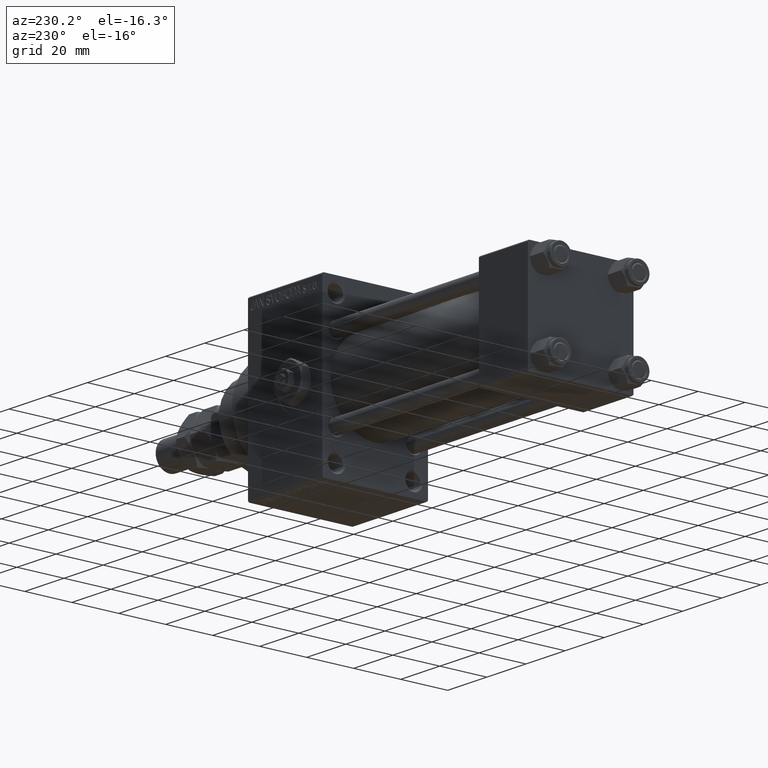
[diagram: clean part render]
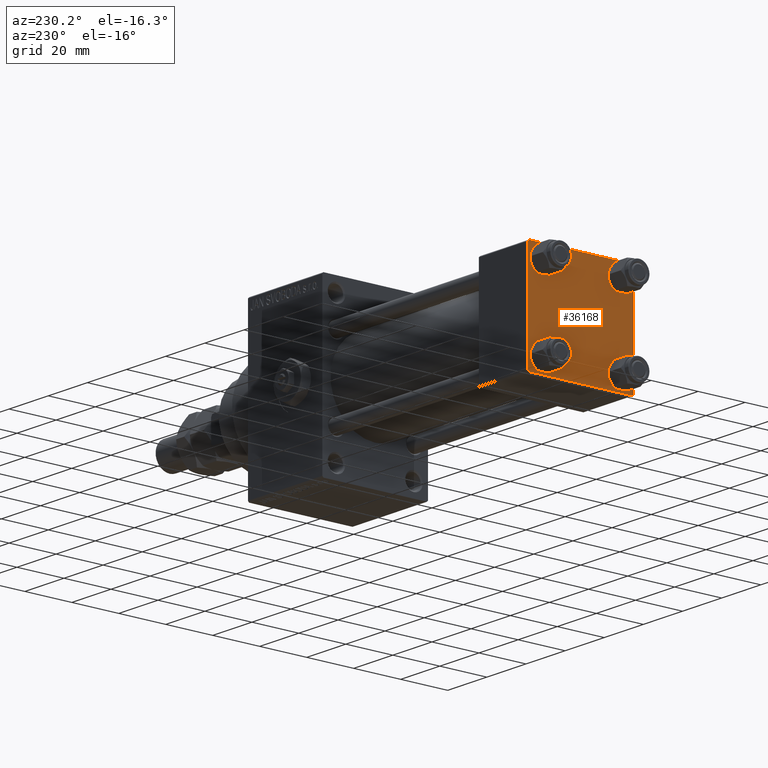
[diagram: same view with one face highlighted and labeled with its STEP entity id]
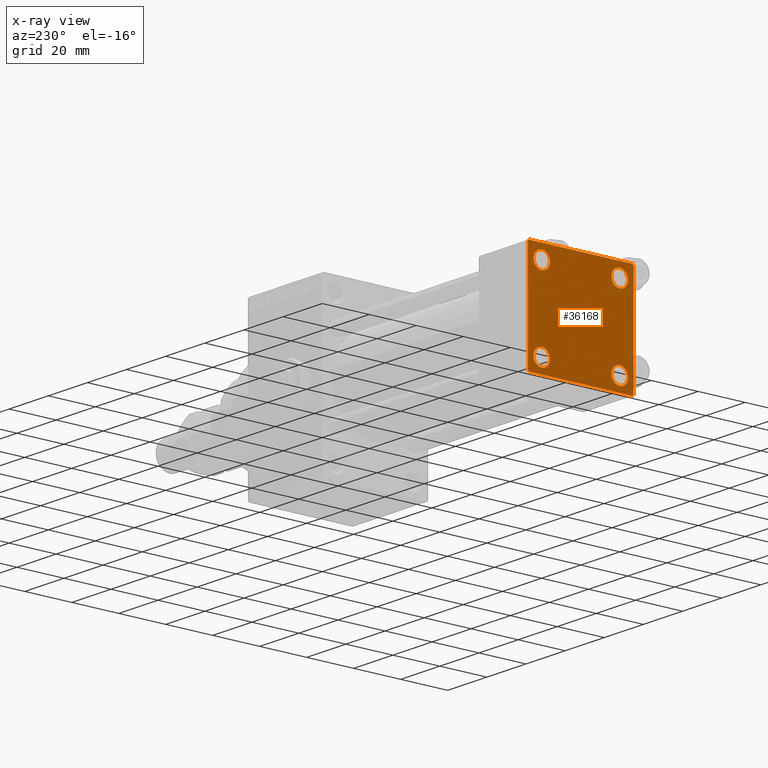
[diagram: x-ray of the same camera — body ghosted, the highlighted face saturated]
A machine part, auxiliary view. The second image highlights one B-rep face of the part: STEP entity #36168.
The next image is the same camera in x-ray: the body ghosted, the highlighted face saturated — about 0% of this face is hidden behind the body in this view.
In plain terms, the highlighted planar face has unit normal (-1, 0, 0).
Its self-contained STEP definition (entity closure, byte-faithful):
#117 = FACE_BOUND ( 'NONE', #17836, .T. ) ;
#741 = CARTESIAN_POINT ( 'NONE',  ( 0.000000000000000000, -22.50000000000000000, 22.00000000000000000 ) ) ;
#1587 = CARTESIAN_POINT ( 'NONE',  ( 0.000000000000000000, 21.99999999999999289, 22.50000000000000355 ) ) ;
#1620 = ORIENTED_EDGE ( 'NONE', *, *, #12202, .T. ) ;
#2252 = VECTOR ( 'NONE', #13999, 1000.000000000000000 ) ;
#2340 = CARTESIAN_POINT ( 'NONE',  ( 0.000000000000000000, 22.50000000000000000, 22.50000000000000355 ) ) ;
#2473 = LINE ( 'NONE', #32943, #30519 ) ;
#2767 = ORIENTED_EDGE ( 'NONE', *, *, #11593, .T. ) ;
#3145 = ORIENTED_EDGE ( 'NONE', *, *, #36385, .T. ) ;
#3362 = LINE ( 'NONE', #29767, #38797 ) ;
#3772 = DIRECTION ( 'NONE',  ( 0.000000000000000000, 0.000000000000000000, 1.000000000000000000 ) ) ;
#3838 = CARTESIAN_POINT ( 'NONE',  ( 0.000000000000000000, -16.59999999999999076, 13.10000000000001030 ) ) ;
#3938 = AXIS2_PLACEMENT_3D ( 'NONE', #32526, #9170, #28213 ) ;
#4548 = AXIS2_PLACEMENT_3D ( 'NONE', #35567, #19544, #7872 ) ;
#6186 = DIRECTION ( 'NONE',  ( 0.000000000000000000, 0.000000000000000000, 1.000000000000000000 ) ) ;
#6340 = AXIS2_PLACEMENT_3D ( 'NONE', #19393, #41520, #18877 ) ;
#6873 = EDGE_CURVE ( 'NONE', #41112, #33952, #37143, .T. ) ;
#7172 = VERTEX_POINT ( 'NONE', #34707 ) ;
#7479 = ORIENTED_EDGE ( 'NONE', *, *, #21169, .T. ) ;
#7845 = EDGE_CURVE ( 'NONE', #8576, #24491, #15244, .T. ) ;
#7872 = DIRECTION ( 'NONE',  ( 0.000000000000000000, 0.000000000000000000, 1.000000000000000000 ) ) ;
#8460 = VERTEX_POINT ( 'NONE', #39035 ) ;
#8576 = VERTEX_POINT ( 'NONE', #33573 ) ;
#8797 = EDGE_CURVE ( 'NONE', #7172, #32575, #38831, .T. ) ;
#9062 = CIRCLE ( 'NONE', #18744, 3.499999999999996003 ) ;
#9170 = DIRECTION ( 'NONE',  ( 1.000000000000000000, -0.000000000000000000, 0.000000000000000000 ) ) ;
#9415 = DIRECTION ( 'NONE',  ( 0.000000000000000000, 0.000000000000000000, 1.000000000000000000 ) ) ;
#9464 = VERTEX_POINT ( 'NONE', #48593 ) ;
#10313 = DIRECTION ( 'NONE',  ( 0.000000000000000000, 0.000000000000000000, -1.000000000000000000 ) ) ;
#11593 = EDGE_CURVE ( 'NONE', #25886, #33952, #32367, .T. ) ;
#11616 = CARTESIAN_POINT ( 'NONE',  ( 0.000000000000000000, 16.59999999999999787, -20.10000000000000142 ) ) ;
#11896 = CARTESIAN_POINT ( 'NONE',  ( 0.000000000000000000, 16.59999999999999787, 16.60000000000000497 ) ) ;
#12202 = EDGE_CURVE ( 'NONE', #16503, #45524, #2473, .T. ) ;
#12263 = EDGE_CURVE ( 'NONE', #24491, #8576, #32161, .T. ) ;
#12298 = PLANE ( 'NONE',  #42872 ) ;
#13057 = CARTESIAN_POINT ( 'NONE',  ( 0.000000000000000000, -16.59999999999999076, 16.60000000000000853 ) ) ;
#13392 = ORIENTED_EDGE ( 'NONE', *, *, #25162, .T. ) ;
#13926 = VECTOR ( 'NONE', #15785, 1000.000000000000000 ) ;
#13999 = DIRECTION ( 'NONE',  ( 0.000000000000000000, -1.000000000000000000, -7.709882115452476934E-17 ) ) ;
#14707 = ORIENTED_EDGE ( 'NONE', *, *, #47694, .T. ) ;
#14809 = AXIS2_PLACEMENT_3D ( 'NONE', #13057, #48615, #6186 ) ;
#15244 = CIRCLE ( 'NONE', #28234, 3.499999999999996003 ) ;
#15658 = EDGE_CURVE ( 'NONE', #32575, #7172, #21753, .T. ) ;
#15785 = DIRECTION ( 'NONE',  ( 0.000000000000000000, 0.000000000000000000, -1.000000000000000000 ) ) ;
#16041 = LINE ( 'NONE', #16535, #47483 ) ;
#16075 = ORIENTED_EDGE ( 'NONE', *, *, #43931, .T. ) ;
#16503 = VERTEX_POINT ( 'NONE', #18382 ) ;
#16535 = CARTESIAN_POINT ( 'NONE',  ( 0.000000000000000000, 22.50000000000000000, -22.49999999999999645 ) ) ;
#16600 = DIRECTION ( 'NONE',  ( -0.000000000000000000, 0.000000000000000000, 1.000000000000000000 ) ) ;
#16843 = FACE_OUTER_BOUND ( 'NONE', #42362, .T. ) ;
#17078 = EDGE_LOOP ( 'NONE', ( #34145, #43774 ) ) ;
#17836 = EDGE_LOOP ( 'NONE', ( #25747, #16075 ) ) ;
#18382 = CARTESIAN_POINT ( 'NONE',  ( 0.000000000000000000, -21.99999999999997158, -22.50000000000000711 ) ) ;
#18744 = AXIS2_PLACEMENT_3D ( 'NONE', #30258, #19082, #22140 ) ;
#18877 = DIRECTION ( 'NONE',  ( 0.000000000000000000, 0.000000000000000000, 1.000000000000000000 ) ) ;
#19082 = DIRECTION ( 'NONE',  ( 1.000000000000000000, -0.000000000000000000, 0.000000000000000000 ) ) ;
#19092 = LINE ( 'NONE', #38926, #13926 ) ;
#19393 = CARTESIAN_POINT ( 'NONE',  ( 0.000000000000000000, 16.59999999999999787, -16.60000000000000497 ) ) ;
#19544 = DIRECTION ( 'NONE',  ( 1.000000000000000000, -0.000000000000000000, 0.000000000000000000 ) ) ;
#19588 = LINE ( 'NONE', #23647, #36919 ) ;
#19622 = ORIENTED_EDGE ( 'NONE', *, *, #46661, .T. ) ;
#19847 = VERTEX_POINT ( 'NONE', #43444 ) ;
#20719 = CARTESIAN_POINT ( 'NONE',  ( 0.000000000000000000, -22.50000000000000000, -21.99999999999997158 ) ) ;
#21169 = EDGE_CURVE ( 'NONE', #45878, #37153, #36743, .T. ) ;
#21657 = ORIENTED_EDGE ( 'NONE', *, *, #48162, .F. ) ;
#21753 = CIRCLE ( 'NONE', #6340, 3.499999999999996003 ) ;
#22140 = DIRECTION ( 'NONE',  ( 0.000000000000000000, 0.000000000000000000, 1.000000000000000000 ) ) ;
#22711 = AXIS2_PLACEMENT_3D ( 'NONE', #11896, #34780, #3772 ) ;
#22761 = DIRECTION ( 'NONE',  ( 0.000000000000000000, 0.000000000000000000, 1.000000000000000000 ) ) ;
#23150 = DIRECTION ( 'NONE',  ( 0.000000000000000000, 0.7071067811865474617, -0.7071067811865474617 ) ) ;
#23208 = FACE_BOUND ( 'NONE', #17078, .T. ) ;
#23647 = CARTESIAN_POINT ( 'NONE',  ( 0.000000000000000000, 22.25000000000014566, -22.24999999999984013 ) ) ;
#24491 = VERTEX_POINT ( 'NONE', #46890 ) ;
#24732 = CARTESIAN_POINT ( 'NONE',  ( -0.000000000000000000, -22.24999999999984013, 22.25000000000015277 ) ) ;
#25162 = EDGE_CURVE ( 'NONE', #8460, #31087, #19588, .T. ) ;
#25418 = CARTESIAN_POINT ( 'NONE',  ( 0.000000000000000000, 21.99999999999999289, -22.49999999999999645 ) ) ;
#25747 = ORIENTED_EDGE ( 'NONE', *, *, #31238, .T. ) ;
#25826 = DIRECTION ( 'NONE',  ( 1.000000000000000000, -0.000000000000000000, 0.000000000000000000 ) ) ;
#25886 = VERTEX_POINT ( 'NONE', #741 ) ;
#26276 = FACE_BOUND ( 'NONE', #47443, .T. ) ;
#27122 = CIRCLE ( 'NONE', #22711, 3.499999999999996003 ) ;
#27476 = DIRECTION ( 'NONE',  ( 0.000000000000000000, -1.000000000000000000, -2.312964634635742957E-16 ) ) ;
#27559 = CARTESIAN_POINT ( 'NONE',  ( 0.000000000000000000, 16.59999999999999787, 20.10000000000000142 ) ) ;
#28213 = DIRECTION ( 'NONE',  ( 0.000000000000000000, 0.000000000000000000, 1.000000000000000000 ) ) ;
#28234 = AXIS2_PLACEMENT_3D ( 'NONE', #32006, #44207, #9415 ) ;
#29587 = LINE ( 'NONE', #45095, #30123 ) ;
#29767 = CARTESIAN_POINT ( 'NONE',  ( 0.000000000000000000, 22.24999999999999645, 22.24999999999999645 ) ) ;
#30123 = VECTOR ( 'NONE', #10313, 1000.000000000000000 ) ;
#30209 = EDGE_CURVE ( 'NONE', #31087, #16503, #16041, .T. ) ;
#30258 = CARTESIAN_POINT ( 'NONE',  ( 0.000000000000000000, -16.59999999999999076, 16.60000000000000853 ) ) ;
#30519 = VECTOR ( 'NONE', #44394, 1000.000000000000000 ) ;
#31087 = VERTEX_POINT ( 'NONE', #25418 ) ;
#31238 = EDGE_CURVE ( 'NONE', #39079, #19847, #48347, .T. ) ;
#32006 = CARTESIAN_POINT ( 'NONE',  ( 0.000000000000000000, -16.59999999999999076, -16.60000000000000853 ) ) ;
#32161 = CIRCLE ( 'NONE', #32959, 3.499999999999996003 ) ;
#32320 = ORIENTED_EDGE ( 'NONE', *, *, #30209, .T. ) ;
#32345 = CARTESIAN_POINT ( 'NONE',  ( 0.000000000000000000, 0.000000000000000000, 0.000000000000000000 ) ) ;
#32367 = LINE ( 'NONE', #24732, #47567 ) ;
#32526 = CARTESIAN_POINT ( 'NONE',  ( 0.000000000000000000, 16.59999999999999787, -16.60000000000000497 ) ) ;
#32575 = VERTEX_POINT ( 'NONE', #11616 ) ;
#32943 = CARTESIAN_POINT ( 'NONE',  ( 0.000000000000000000, -22.25000000000014566, -22.24999999999984013 ) ) ;
#32959 = AXIS2_PLACEMENT_3D ( 'NONE', #49175, #25826, #22761 ) ;
#33573 = CARTESIAN_POINT ( 'NONE',  ( 0.000000000000000000, -16.59999999999999076, -20.10000000000000497 ) ) ;
#33952 = VERTEX_POINT ( 'NONE', #37389 ) ;
#34052 = CARTESIAN_POINT ( 'NONE',  ( 0.000000000000000000, -16.59999999999999076, 20.10000000000000853 ) ) ;
#34145 = ORIENTED_EDGE ( 'NONE', *, *, #8797, .T. ) ;
#34707 = CARTESIAN_POINT ( 'NONE',  ( 0.000000000000000000, 16.59999999999999787, -13.10000000000000675 ) ) ;
#34780 = DIRECTION ( 'NONE',  ( 1.000000000000000000, -0.000000000000000000, 0.000000000000000000 ) ) ;
#35567 = CARTESIAN_POINT ( 'NONE',  ( 0.000000000000000000, 16.59999999999999787, 16.60000000000000497 ) ) ;
#36168 = ADVANCED_FACE ( 'NONE', ( #50138, #26276, #23208, #117, #16843 ), #12298, .T. ) ;
#36191 = DIRECTION ( 'NONE',  ( -0.000000000000000000, 0.7071067811865525687, 0.7071067811865425767 ) ) ;
#36385 = EDGE_CURVE ( 'NONE', #41112, #9464, #3362, .T. ) ;
#36743 = CIRCLE ( 'NONE', #14809, 3.499999999999996003 ) ;
#36919 = VECTOR ( 'NONE', #43225, 1000.000000000000000 ) ;
#37143 = LINE ( 'NONE', #2340, #2252 ) ;
#37153 = VERTEX_POINT ( 'NONE', #34052 ) ;
#37389 = CARTESIAN_POINT ( 'NONE',  ( 0.000000000000000000, -21.99999999999997868, 22.50000000000000000 ) ) ;
#38797 = VECTOR ( 'NONE', #23150, 1000.000000000000114 ) ;
#38831 = CIRCLE ( 'NONE', #3938, 3.499999999999996003 ) ;
#38926 = CARTESIAN_POINT ( 'NONE',  ( 0.000000000000000000, -22.50000000000000000, 22.50000000000000000 ) ) ;
#39035 = CARTESIAN_POINT ( 'NONE',  ( 0.000000000000000000, 22.50000000000000000, -21.99999999999996803 ) ) ;
#39079 = VERTEX_POINT ( 'NONE', #27559 ) ;
#39480 = DIRECTION ( 'NONE',  ( -1.000000000000000000, 0.000000000000000000, -0.000000000000000000 ) ) ;
#41112 = VERTEX_POINT ( 'NONE', #1587 ) ;
#41520 = DIRECTION ( 'NONE',  ( 1.000000000000000000, -0.000000000000000000, 0.000000000000000000 ) ) ;
#42362 = EDGE_LOOP ( 'NONE', ( #14707, #13392, #32320, #1620, #21657, #2767, #49823, #3145 ) ) ;
#42872 = AXIS2_PLACEMENT_3D ( 'NONE', #32345, #39480, #16600 ) ;
#43225 = DIRECTION ( 'NONE',  ( -0.000000000000000000, -0.7071067811865426878, -0.7071067811865524577 ) ) ;
#43444 = CARTESIAN_POINT ( 'NONE',  ( 0.000000000000000000, 16.59999999999999787, 13.10000000000000675 ) ) ;
#43774 = ORIENTED_EDGE ( 'NONE', *, *, #15658, .T. ) ;
#43931 = EDGE_CURVE ( 'NONE', #19847, #39079, #27122, .T. ) ;
#44207 = DIRECTION ( 'NONE',  ( 1.000000000000000000, -0.000000000000000000, 0.000000000000000000 ) ) ;
#44394 = DIRECTION ( 'NONE',  ( 0.000000000000000000, -0.7071067811865426878, 0.7071067811865524577 ) ) ;
#45095 = CARTESIAN_POINT ( 'NONE',  ( 0.000000000000000000, 22.50000000000000000, 22.50000000000000355 ) ) ;
#45524 = VERTEX_POINT ( 'NONE', #20719 ) ;
#45878 = VERTEX_POINT ( 'NONE', #3838 ) ;
#46531 = ORIENTED_EDGE ( 'NONE', *, *, #7845, .T. ) ;
#46661 = EDGE_CURVE ( 'NONE', #37153, #45878, #9062, .T. ) ;
#46890 = CARTESIAN_POINT ( 'NONE',  ( 0.000000000000000000, -16.59999999999999076, -13.10000000000001030 ) ) ;
#47443 = EDGE_LOOP ( 'NONE', ( #47621, #46531 ) ) ;
#47483 = VECTOR ( 'NONE', #27476, 1000.000000000000000 ) ;
#47567 = VECTOR ( 'NONE', #36191, 999.9999999999998863 ) ;
#47621 = ORIENTED_EDGE ( 'NONE', *, *, #12263, .T. ) ;
#47694 = EDGE_CURVE ( 'NONE', #9464, #8460, #29587, .T. ) ;
#47784 = EDGE_LOOP ( 'NONE', ( #19622, #7479 ) ) ;
#48162 = EDGE_CURVE ( 'NONE', #25886, #45524, #19092, .T. ) ;
#48347 = CIRCLE ( 'NONE', #4548, 3.499999999999996003 ) ;
#48593 = CARTESIAN_POINT ( 'NONE',  ( 0.000000000000000000, 22.50000000000000000, 21.99999999999999645 ) ) ;
#48615 = DIRECTION ( 'NONE',  ( 1.000000000000000000, -0.000000000000000000, 0.000000000000000000 ) ) ;
#49175 = CARTESIAN_POINT ( 'NONE',  ( 0.000000000000000000, -16.59999999999999076, -16.60000000000000853 ) ) ;
#49823 = ORIENTED_EDGE ( 'NONE', *, *, #6873, .F. ) ;
#50138 = FACE_BOUND ( 'NONE', #47784, .T. ) ;